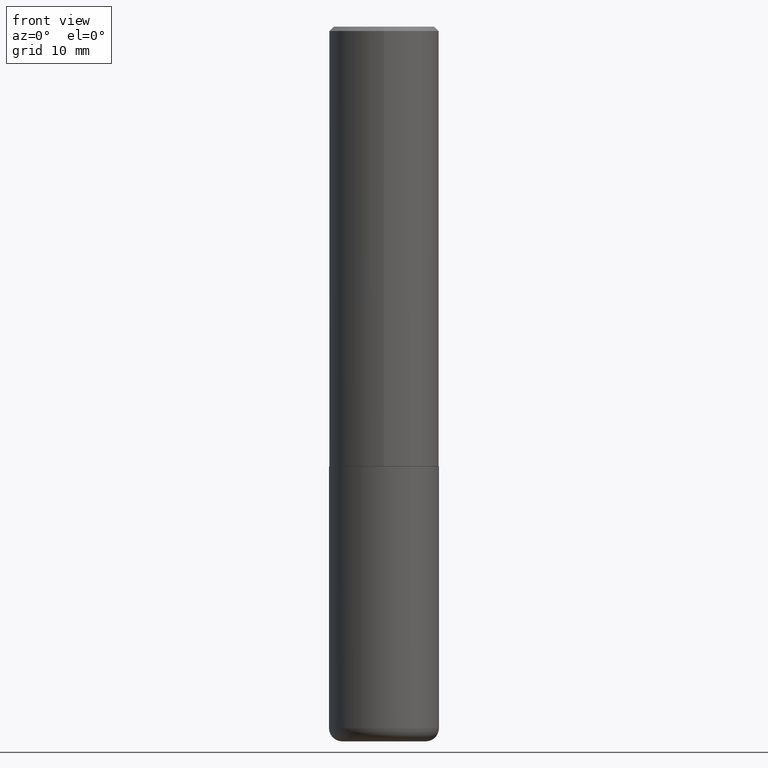
[diagram: clean part render]
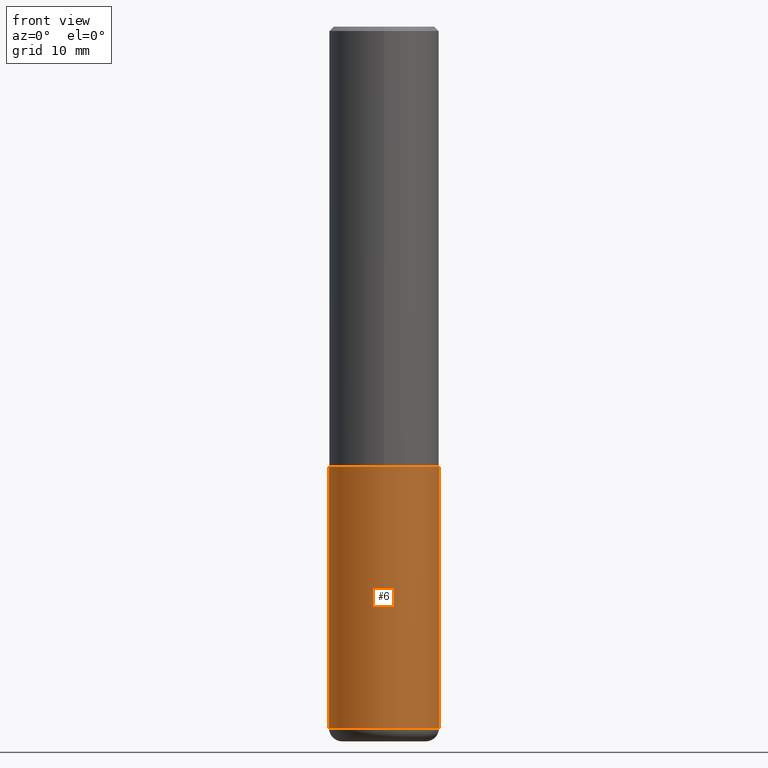
[diagram: same view with one face highlighted and labeled with its STEP entity id]
A machine part, front view. The second image highlights one B-rep face of the part: STEP entity #6.
In plain terms, the highlighted cylindrical surface (partial cylindrical patch) has radius 6.35 mm, axis along (-0, 0, 1).
Its self-contained STEP definition (entity closure, byte-faithful):
#6 = ADVANCED_FACE ( 'NONE', ( #367 ), #71, .T. ) ;
#7 = DIRECTION ( 'NONE',  ( 1.000000000000000000, -6.982962677686270655E-15, 0.000000000000000000 ) ) ;
#13 = EDGE_CURVE ( 'NONE', #159, #324, #288, .T. ) ;
#35 = ORIENTED_EDGE ( 'NONE', *, *, #270, .F. ) ;
#37 = CARTESIAN_POINT ( 'NONE',  ( 0.000000000000000000, 0.000000000000000000, 0.000000000000000000 ) ) ;
#45 = DIRECTION ( 'NONE',  ( -2.445468806185136877E-29, 3.491481338843145188E-15, 1.000000000000000000 ) ) ;
#64 = EDGE_CURVE ( 'NONE', #159, #348, #202, .T. ) ;
#71 = CYLINDRICAL_SURFACE ( 'NONE', #94, 0.2500000000000000000 ) ;
#86 = CARTESIAN_POINT ( 'NONE',  ( 0.2500000000000000000, -1.745740669421566678E-15, 1.219044193948983948E-29 ) ) ;
#90 = CARTESIAN_POINT ( 'NONE',  ( 0.2500000000000000000, -8.728703347107857054E-15, -2.000000000000000000 ) ) ;
#94 = AXIS2_PLACEMENT_3D ( 'NONE', #37, #371, #329 ) ;
#105 = CARTESIAN_POINT ( 'NONE',  ( 7.801045491730585789E-29, -1.113782547090963453E-14, -3.189999999999999947 ) ) ;
#140 = VECTOR ( 'NONE', #143, 39.37007874015748143 ) ;
#143 = DIRECTION ( 'NONE',  ( -2.445468806185136877E-29, 3.491481338843145188E-15, 1.000000000000000000 ) ) ;
#145 = CIRCLE ( 'NONE', #257, 0.2500000000000000000 ) ;
#149 = EDGE_CURVE ( 'NONE', #324, #330, #273, .T. ) ;
#151 = AXIS2_PLACEMENT_3D ( 'NONE', #105, #291, #7 ) ;
#159 = VERTEX_POINT ( 'NONE', #381 ) ;
#181 = CARTESIAN_POINT ( 'NONE',  ( -0.2500000000000000000, -7.284037234897712778E-15, -2.000000000000000000 ) ) ;
#202 = LINE ( 'NONE', #333, #256 ) ;
#208 = DIRECTION ( 'NONE',  ( -2.445468806185136597E-29, 3.491481338843145583E-15, 1.000000000000000000 ) ) ;
#256 = VECTOR ( 'NONE', #45, 39.37007874015748143 ) ;
#257 = AXIS2_PLACEMENT_3D ( 'NONE', #350, #208, #311 ) ;
#260 = ORIENTED_EDGE ( 'NONE', *, *, #64, .F. ) ;
#270 = EDGE_CURVE ( 'NONE', #348, #330, #145, .T. ) ;
#273 = LINE ( 'NONE', #86, #140 ) ;
#288 = CIRCLE ( 'NONE', #151, 0.2500000000000000000 ) ;
#291 = DIRECTION ( 'NONE',  ( -2.445468806185136597E-29, 3.491481338843145583E-15, 1.000000000000000000 ) ) ;
#296 = EDGE_LOOP ( 'NONE', ( #260, #399, #402, #35 ) ) ;
#311 = DIRECTION ( 'NONE',  ( 1.000000000000000000, -6.982962677686266711E-15, 0.000000000000000000 ) ) ;
#324 = VERTEX_POINT ( 'NONE', #344 ) ;
#329 = DIRECTION ( 'NONE',  ( 1.000000000000000000, -6.982962677686266711E-15, 4.876176775795935793E-29 ) ) ;
#330 = VERTEX_POINT ( 'NONE', #90 ) ;
#333 = CARTESIAN_POINT ( 'NONE',  ( -0.2500000000000000000, 1.776356839400250465E-15, -1.229733772563726445E-29 ) ) ;
#344 = CARTESIAN_POINT ( 'NONE',  ( 0.2499999999999999722, -1.288356614033120121E-14, -3.189999999999999947 ) ) ;
#348 = VERTEX_POINT ( 'NONE', #181 ) ;
#350 = CARTESIAN_POINT ( 'NONE',  ( 4.890937612370273194E-29, -6.982962677686291165E-15, -2.000000000000000000 ) ) ;
#367 = FACE_OUTER_BOUND ( 'NONE', #296, .T. ) ;
#371 = DIRECTION ( 'NONE',  ( -2.445468806185136597E-29, 3.491481338843145583E-15, 1.000000000000000000 ) ) ;
#381 = CARTESIAN_POINT ( 'NONE',  ( -0.2499999999999999722, -9.361468631509382488E-15, -3.189999999999999947 ) ) ;
#399 = ORIENTED_EDGE ( 'NONE', *, *, #13, .T. ) ;
#402 = ORIENTED_EDGE ( 'NONE', *, *, #149, .T. ) ;